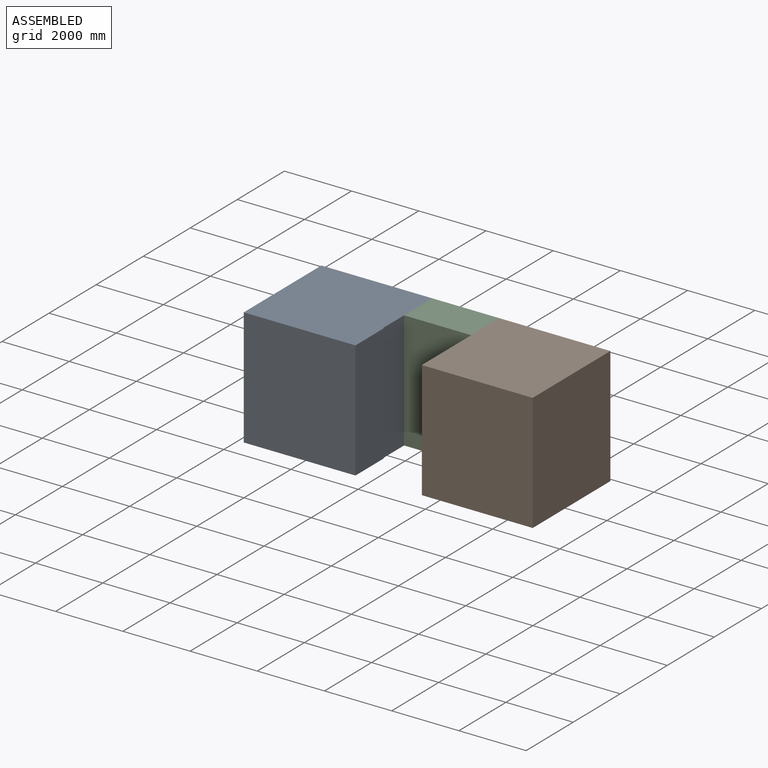
[diagram: assembled view]
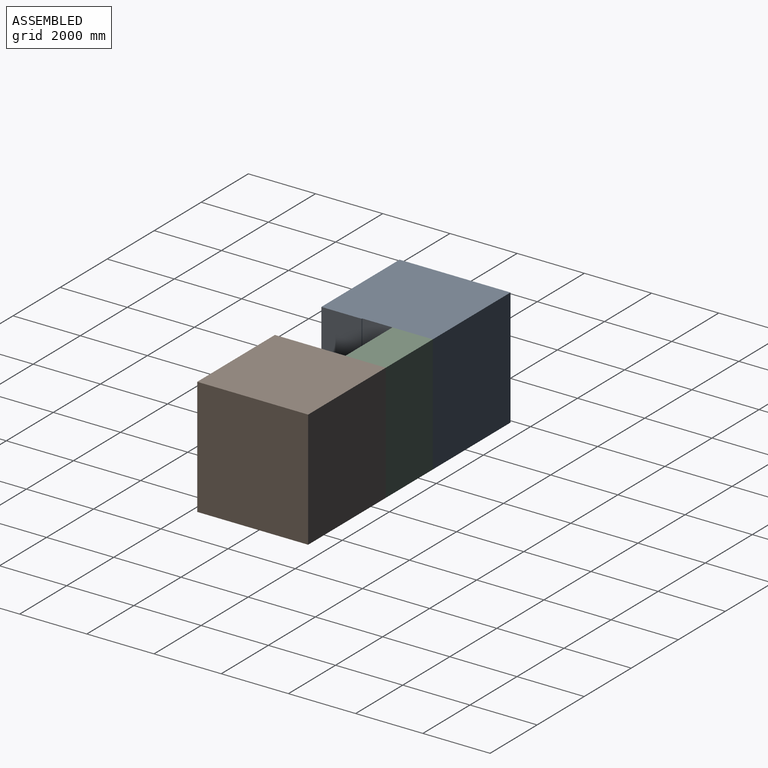
[diagram: assembled view, second angle]
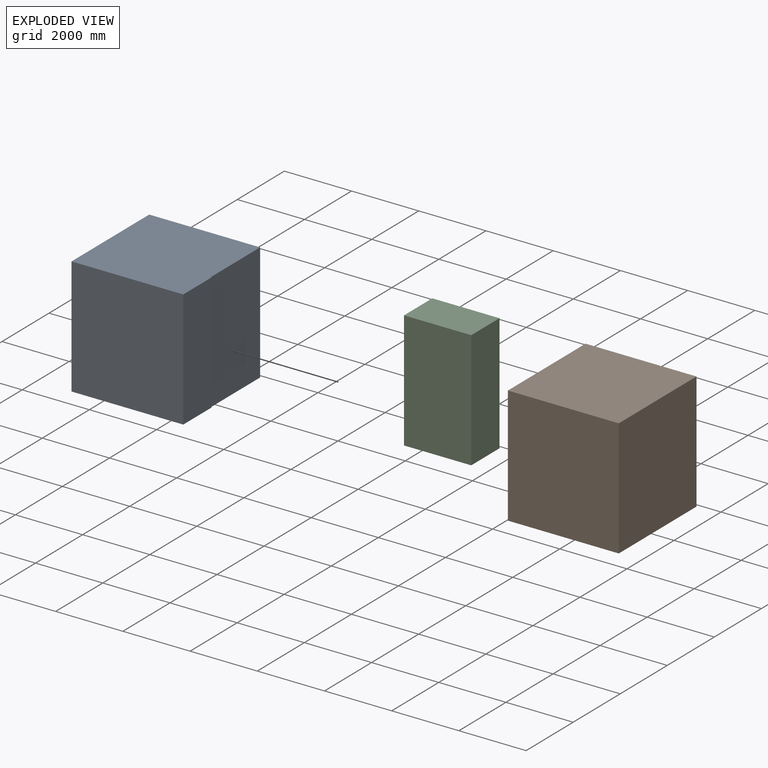
[diagram: exploded view]
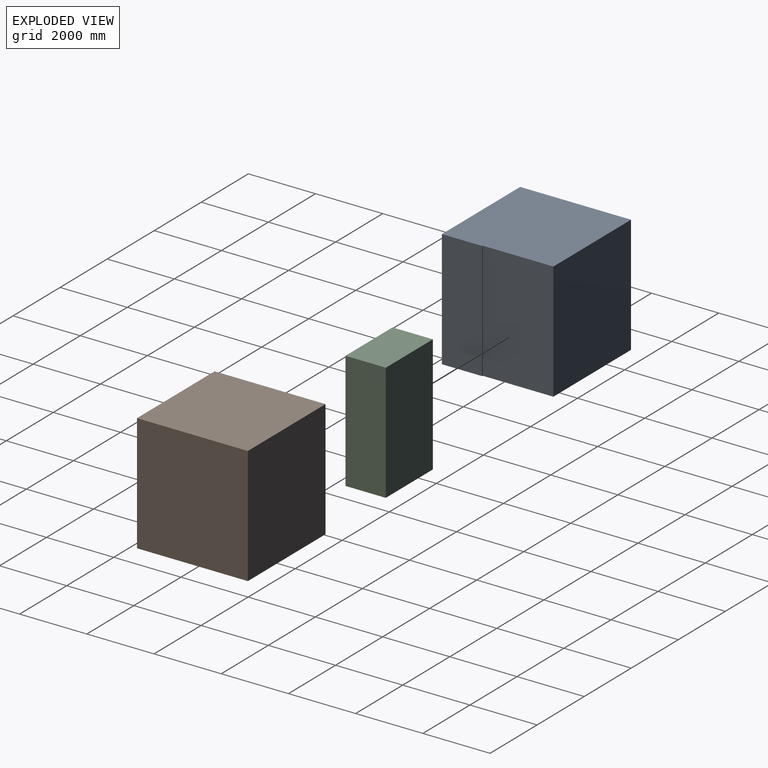
[diagram: exploded view, second angle]
ASSEMBLY  parts=3 mates=6
PART A: 13 faces, bbox 3325x3300x3500 mm
  f0: plane 3325x3300mm, normal (0,0,-1), area 10620000mm2, adj f1,f2,f3,f4,f6,f7,f8,f9
  f1: plane 3500x2100mm, normal (1,0,0), area 7350000mm2, adj f0,f2,f5,f6
  f2: plane 3500x3300mm, normal (0,1,0), area 11550000mm2, adj f0,f1,f3,f5
  f3: plane 3500x3300mm, normal (-1,0,0), area 11550000mm2, adj f0,f2,f4,f5
  f4: plane 3500x3325mm, normal (0,-1,0), area 11637500mm2, adj f0,f3,f5,f7
  f5: plane 3325x3300mm, normal (0,0,1), area 10920000mm2, adj f1,f2,f3,f4,f6,f7
  f6: plane 3500x25mm, normal (0,1,0), area 87500mm2, adj f0,f1,f5,f7
  f7: plane 3500x1200mm, normal (1,0,0), area 4200000mm2, adj f0,f4,f5,f6
  f8: plane 1000x300mm, normal (0,1,0), area 300000mm2, adj f0,f9,f11,f12
  f9: plane 1000x1000mm, normal (1,0,0), area 1000000mm2, adj f0,f8,f10,f12
  f10: plane 1000x300mm, normal (0,-1,0), area 300000mm2, adj f0,f9,f11,f12
  f11: plane 1000x1000mm, normal (-1,0,0), area 1000000mm2, adj f0,f8,f10,f12
  f12: plane 1000x300mm, normal (0,0,-1), area 300000mm2, adj f8,f9,f10,f11
PART B: 6 faces, bbox 3300x3300x3500 mm
  f0: plane 3500x3300mm, normal (1,0,0), area 11550000mm2, adj f1,f3,f4,f5
  f1: plane 3500x3300mm, normal (0,1,0), area 11550000mm2, adj f0,f2,f4,f5
  f2: plane 3500x3300mm, normal (-1,0,0), area 11550000mm2, adj f1,f3,f4,f5
  f3: plane 3500x3300mm, normal (0,-1,0), area 11550000mm2, adj f0,f2,f4,f5
  f4: plane 3300x3300mm, normal (0,0,1), area 10890000mm2, adj f0,f1,f2,f3
  f5: plane 3300x3300mm, normal (0,0,-1), area 10890000mm2, adj f0,f1,f2,f3
PART C: 6 faces, bbox 2000x1200x3500 mm
  f0: plane 3500x2000mm, normal (0,-1,0), area 7000000mm2, adj f1,f3,f4,f5
  f1: plane 3500x1200mm, normal (1,0,0), area 4200000mm2, adj f0,f2,f4,f5
  f2: plane 3500x2000mm, normal (0,1,0), area 7000000mm2, adj f1,f3,f4,f5
  f3: plane 3500x1200mm, normal (-1,0,0), area 4200000mm2, adj f0,f2,f4,f5
  f4: plane 2000x1200mm, normal (0,0,1), area 2400000mm2, adj f0,f1,f2,f3
  f5: plane 2000x1200mm, normal (0,0,-1), area 2400000mm2, adj f0,f1,f2,f3
PLACE A at identity fixed
PLACE B t=(5300,0,0)mm
PLACE C t=(2650,1050,0)mm
MATE planar C.f3 <-> A.f1  axis (-1,0,0) through (1650,450,3500)mm
MATE planar C.f1 <-> B.f2  axis (1,0,0) through (3650,1050,3500)mm
MATE planar B.f4 <-> C.f4  axis (0,0,1) through (5300,0,3500)mm
MATE planar B.f1 <-> C.f2  axis (0,1,0) through (5300,1650,1750)mm
MATE planar C.f2 <-> A.f2  axis (0,1,0) through (2650,1650,1750)mm
MATE planar A.f5 <-> C.f4  axis (0,0,1) through (1650,1650,3500)mm
